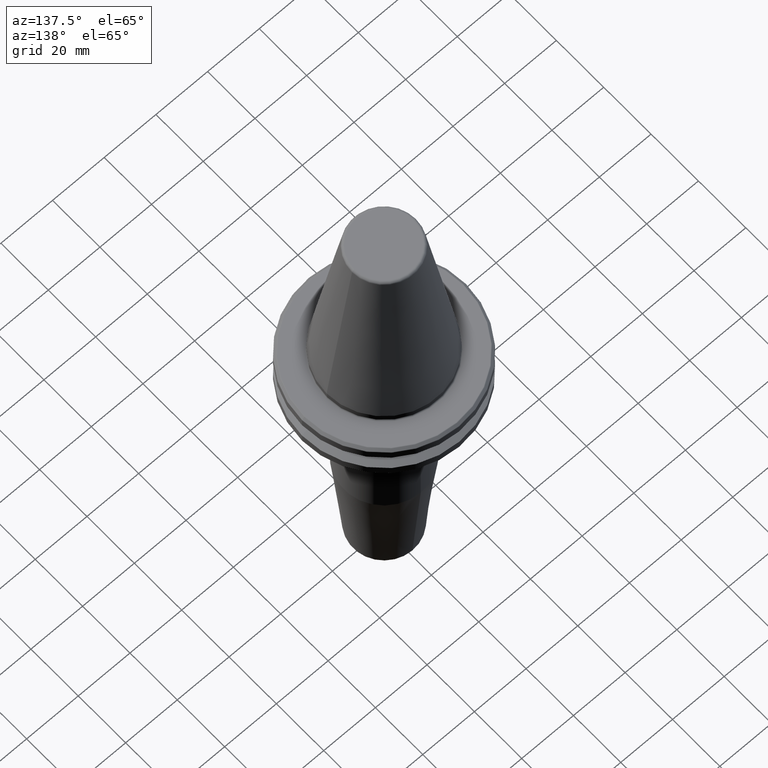
[diagram: clean part render]
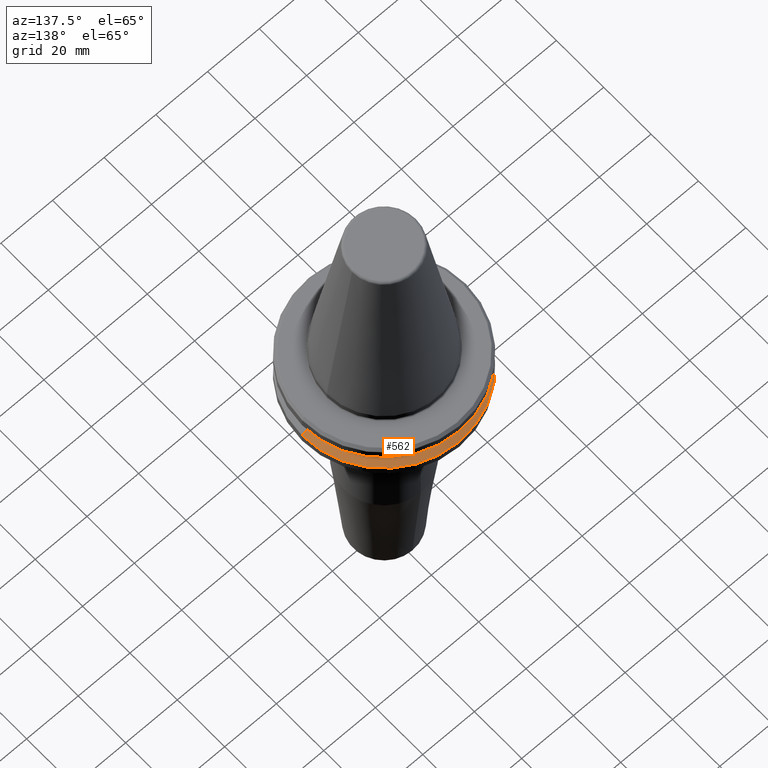
[diagram: same view with one face highlighted and labeled with its STEP entity id]
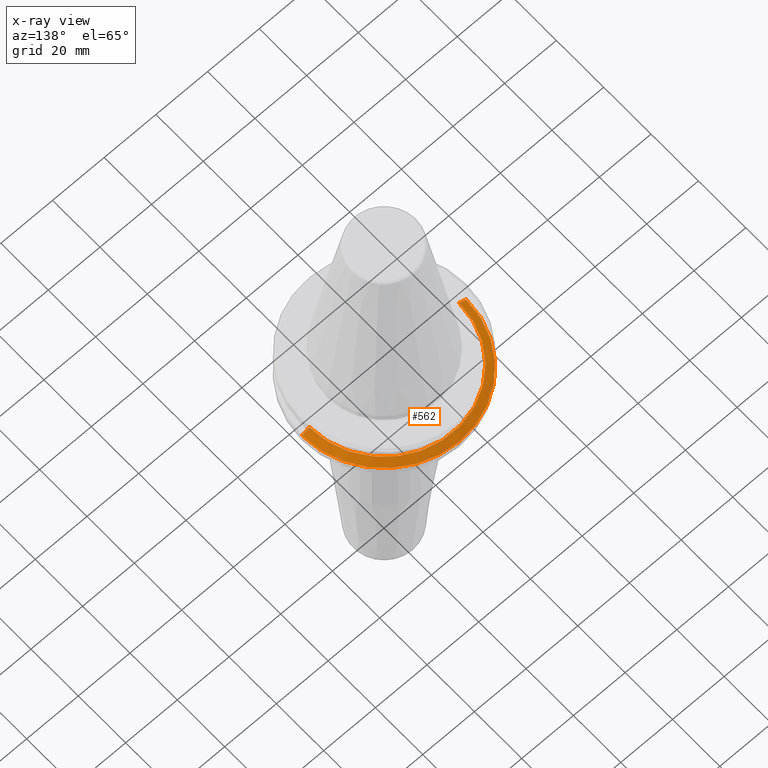
[diagram: x-ray of the same camera — body ghosted, the highlighted face saturated]
A machine part, auxiliary view. The second image highlights one B-rep face of the part: STEP entity #562.
The next image is the same camera in x-ray: the body ghosted, the highlighted face saturated — about 0% of this face is hidden behind the body in this view.
In plain terms, the highlighted conical surface has half-angle 60 deg.
Its self-contained STEP definition (entity closure, byte-faithful):
#11 = DIRECTION ( 'NONE',  ( -0.0000000000000000000, -0.0000000000000000000, 1.000000000000000000 ) ) ;
#32 = CARTESIAN_POINT ( 'NONE',  ( -28.94089653438085100, 0.0000000000000000000, -13.00000000000001100 ) ) ;
#42 = AXIS2_PLACEMENT_3D ( 'NONE', #874, #784, #211 ) ;
#48 = VERTEX_POINT ( 'NONE', #916 ) ;
#157 = VECTOR ( 'NONE', #775, 999.9999999999998900 ) ;
#162 = AXIS2_PLACEMENT_3D ( 'NONE', #1210, #1221, #532 ) ;
#165 = CARTESIAN_POINT ( 'NONE',  ( -28.94089653438085100, 0.0000000000000000000, -13.00000000000001100 ) ) ;
#167 = VERTEX_POINT ( 'NONE', #165 ) ;
#211 = DIRECTION ( 'NONE',  ( -1.000000000000000000, 0.0000000000000000000, 0.0000000000000000000 ) ) ;
#262 = CARTESIAN_POINT ( 'NONE',  ( 31.75000000000000000, 0.0000000000000000000, -14.62183664205671200 ) ) ;
#264 = CIRCLE ( 'NONE', #162, 28.94089653438085100 ) ;
#278 = VECTOR ( 'NONE', #1157, 999.9999999999998900 ) ;
#308 = CARTESIAN_POINT ( 'NONE',  ( -31.75000000000000000, 3.888253587292846500E-015, -14.62183664205671200 ) ) ;
#351 = EDGE_CURVE ( 'NONE', #167, #1137, #404, .T. ) ;
#404 = LINE ( 'NONE', #32, #278 ) ;
#438 = CIRCLE ( 'NONE', #492, 31.75000000000000000 ) ;
#483 = EDGE_CURVE ( 'NONE', #48, #167, #264, .T. ) ;
#492 = AXIS2_PLACEMENT_3D ( 'NONE', #580, #11, #669 ) ;
#532 = DIRECTION ( 'NONE',  ( 1.000000000000000000, 0.0000000000000000000, 0.0000000000000000000 ) ) ;
#542 = EDGE_LOOP ( 'NONE', ( #1229, #800, #960, #816 ) ) ;
#562 = ADVANCED_FACE ( 'NONE', ( #1180 ), #1093, .T. ) ;
#580 = CARTESIAN_POINT ( 'NONE',  ( 0.0000000000000000000, 0.0000000000000000000, -14.62183664205671200 ) ) ;
#628 = VERTEX_POINT ( 'NONE', #262 ) ;
#669 = DIRECTION ( 'NONE',  ( 1.000000000000000000, 0.0000000000000000000, 0.0000000000000000000 ) ) ;
#775 = DIRECTION ( 'NONE',  ( 0.8660254037844420400, 1.060575238724911000E-016, -0.4999999999999943900 ) ) ;
#784 = DIRECTION ( 'NONE',  ( 0.0000000000000000000, 0.0000000000000000000, -1.000000000000000000 ) ) ;
#800 = ORIENTED_EDGE ( 'NONE', *, *, #1096, .T. ) ;
#816 = ORIENTED_EDGE ( 'NONE', *, *, #351, .F. ) ;
#874 = CARTESIAN_POINT ( 'NONE',  ( 0.0000000000000000000, 0.0000000000000000000, -13.00000000000001100 ) ) ;
#916 = CARTESIAN_POINT ( 'NONE',  ( 28.94089653438085100, 3.716245608910634800E-015, -13.00000000000001100 ) ) ;
#938 = LINE ( 'NONE', #1166, #157 ) ;
#948 = EDGE_CURVE ( 'NONE', #628, #1137, #438, .T. ) ;
#960 = ORIENTED_EDGE ( 'NONE', *, *, #948, .T. ) ;
#1093 = CONICAL_SURFACE ( 'NONE', #42, 28.94089653438085100, 1.047197551196604300 ) ;
#1096 = EDGE_CURVE ( 'NONE', #48, #628, #938, .T. ) ;
#1137 = VERTEX_POINT ( 'NONE', #308 ) ;
#1157 = DIRECTION ( 'NONE',  ( -0.8660254037844420400, 0.0000000000000000000, -0.4999999999999943900 ) ) ;
#1166 = CARTESIAN_POINT ( 'NONE',  ( 28.94089653438085100, 3.544237630528423800E-015, -13.00000000000001100 ) ) ;
#1180 = FACE_OUTER_BOUND ( 'NONE', #542, .T. ) ;
#1210 = CARTESIAN_POINT ( 'NONE',  ( 0.0000000000000000000, 0.0000000000000000000, -13.00000000000001100 ) ) ;
#1221 = DIRECTION ( 'NONE',  ( -0.0000000000000000000, -0.0000000000000000000, 1.000000000000000000 ) ) ;
#1229 = ORIENTED_EDGE ( 'NONE', *, *, #483, .F. ) ;